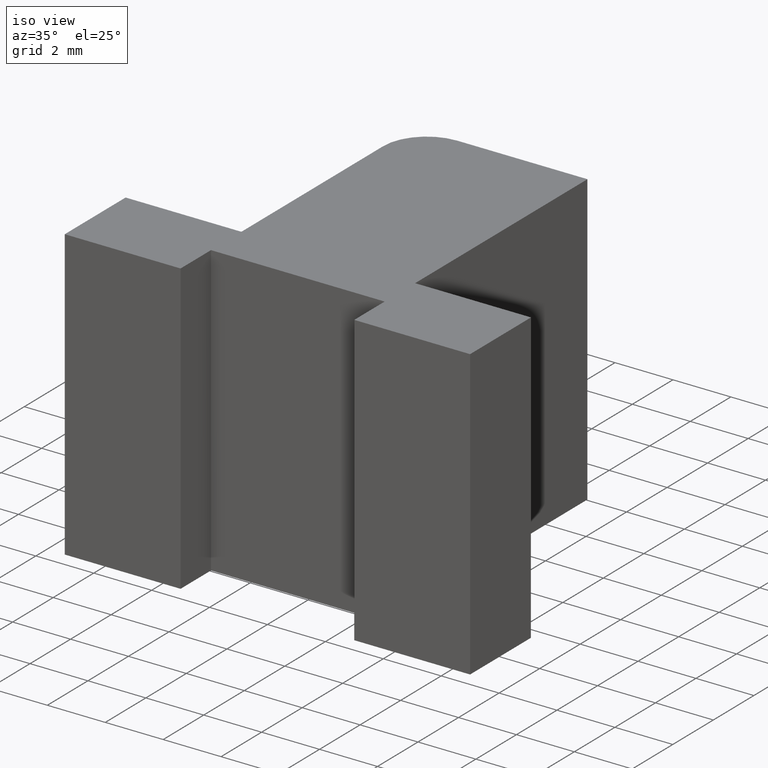
[diagram: clean part render]
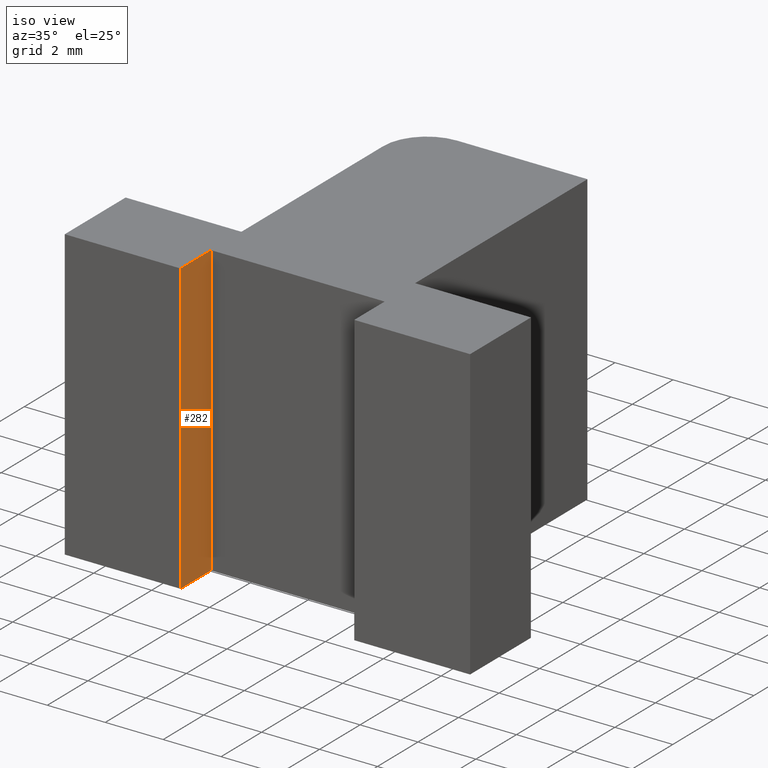
[diagram: same view with one face highlighted and labeled with its STEP entity id]
A machine part, iso view. The second image highlights one B-rep face of the part: STEP entity #282.
In plain terms, the highlighted planar face has unit normal (1, 0, 0).
Its self-contained STEP definition (entity closure, byte-faithful):
#19=FACE_OUTER_BOUND('',#34,.T.);
#34=EDGE_LOOP('',(#208,#209,#210,#211));
#52=LINE('',#416,#89);
#64=LINE('',#441,#101);
#65=LINE('',#444,#102);
#66=LINE('',#445,#103);
#89=VECTOR('',#339,10.);
#101=VECTOR('',#357,10.);
#102=VECTOR('',#360,10.);
#103=VECTOR('',#361,10.);
#126=VERTEX_POINT('',#413);
#127=VERTEX_POINT('',#415);
#137=VERTEX_POINT('',#439);
#138=VERTEX_POINT('',#443);
#152=EDGE_CURVE('',#127,#126,#52,.T.);
#165=EDGE_CURVE('',#137,#126,#64,.T.);
#166=EDGE_CURVE('',#137,#138,#65,.T.);
#167=EDGE_CURVE('',#138,#127,#66,.T.);
#208=ORIENTED_EDGE('',*,*,#166,.T.);
#209=ORIENTED_EDGE('',*,*,#167,.T.);
#210=ORIENTED_EDGE('',*,*,#152,.T.);
#211=ORIENTED_EDGE('',*,*,#165,.F.);
#268=PLANE('',#318);
#282=ADVANCED_FACE('',(#19),#268,.T.);
#318=AXIS2_PLACEMENT_3D('',#442,#358,#359);
#339=DIRECTION('',(0.,1.,0.));
#357=DIRECTION('',(0.,0.,-1.));
#358=DIRECTION('center_axis',(1.,0.,0.));
#359=DIRECTION('ref_axis',(0.,0.,-1.));
#360=DIRECTION('',(0.,-1.,0.));
#361=DIRECTION('',(0.,0.,-1.));
#413=CARTESIAN_POINT('',(-3.,1.5,-5.));
#415=CARTESIAN_POINT('',(-3.,0.,-5.));
#416=CARTESIAN_POINT('',(-3.,1.5,-5.));
#439=CARTESIAN_POINT('',(-3.,1.5,5.));
#441=CARTESIAN_POINT('',(-3.,1.5,0.));
#442=CARTESIAN_POINT('Origin',(-3.,1.5,0.));
#443=CARTESIAN_POINT('',(-3.,0.,5.));
#444=CARTESIAN_POINT('',(-3.,1.5,5.));
#445=CARTESIAN_POINT('',(-3.,0.,0.));